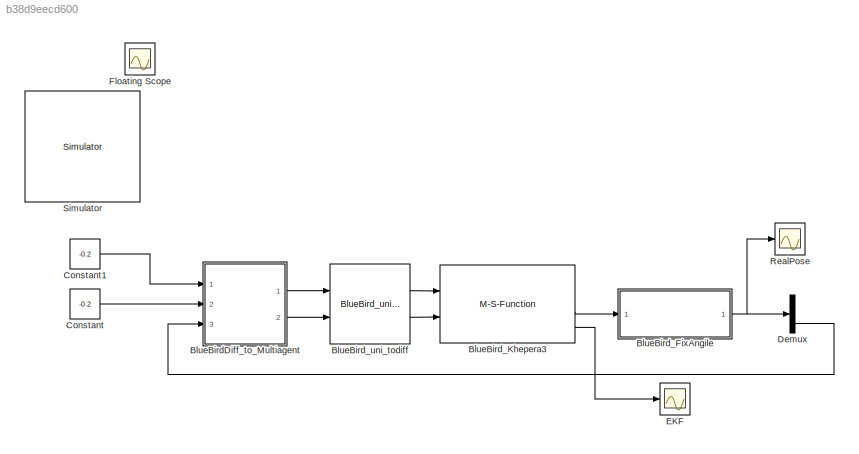
MODEL slx_b38d9eecd600
KIND model
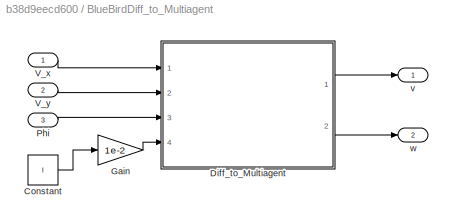
BLOCK [SubSystem] BlueBirdDiff_to_Multiagent
  AncestorBlock = simiam/BlueBird_uni_todiff
  Ports = [3, 2]
  RequestExecContextInheritance = off
BLOCK [Constant] BlueBirdDiff_to_Multiagent/Constant
  Value = l
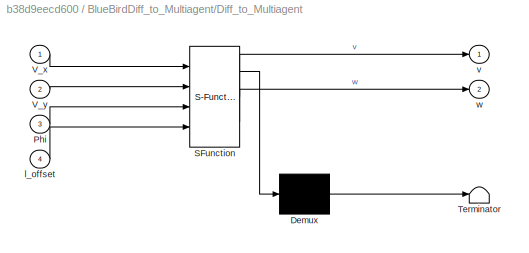
BLOCK [SubSystem] BlueBirdDiff_to_Multiagent/Diff_to_Multiagent
  ErrorFcn = Stateflow.Translate.translate
  PermitHierarchicalResolution = ExplicitOnly
  Ports = [4, 2]
  RequestExecContextInheritance = off
  SFBlockType = MATLAB Function
  TreatAsAtomicUnit = on
BLOCK [Demux] BlueBirdDiff_to_Multiagent/Diff_to_Multiagent/ Demux 
  Outputs = 1
  Ports = [1, 1]
BLOCK [S-Function] BlueBirdDiff_to_Multiagent/Diff_to_Multiagent/ SFunction 
  EnableBusSupport = on
  FunctionName = sf_sfun
  PortCounts = [4 3]
  Ports = [4, 3]
  Tag = Stateflow S-Function BlueBird_RobotLocation 2
BLOCK [Terminator] BlueBirdDiff_to_Multiagent/Diff_to_Multiagent/ Terminator 
BLOCK [Inport] BlueBirdDiff_to_Multiagent/Diff_to_Multiagent/Phi
  IconDisplay = Port number
  Port = 3
BLOCK [Inport] BlueBirdDiff_to_Multiagent/Diff_to_Multiagent/V_x
  IconDisplay = Port number
BLOCK [Inport] BlueBirdDiff_to_Multiagent/Diff_to_Multiagent/V_y
  IconDisplay = Port number
  Port = 2
BLOCK [Inport] BlueBirdDiff_to_Multiagent/Diff_to_Multiagent/l_offset
  IconDisplay = Port number
  Port = 4
BLOCK [Outport] BlueBirdDiff_to_Multiagent/Diff_to_Multiagent/v
  IconDisplay = Port number
BLOCK [Outport] BlueBirdDiff_to_Multiagent/Diff_to_Multiagent/w
  IconDisplay = Port number
  Port = 2
BLOCK [Gain] BlueBirdDiff_to_Multiagent/Gain
  Gain = 1e-2
  OutDataTypeStr = Inherit: Inherit via internal rule
  ParamDataTypeStr = Inherit: Inherit via internal rule
  SaturateOnIntegerOverflow = off
BLOCK [Inport] BlueBirdDiff_to_Multiagent/Phi
  IconDisplay = Port number
  Port = 3
BLOCK [Inport] BlueBirdDiff_to_Multiagent/V_x
  IconDisplay = Port number
BLOCK [Inport] BlueBirdDiff_to_Multiagent/V_y
  IconDisplay = Port number
  Port = 2
BLOCK [Outport] BlueBirdDiff_to_Multiagent/v
  IconDisplay = Port number
BLOCK [Outport] BlueBirdDiff_to_Multiagent/w
  IconDisplay = Port number
  Port = 2
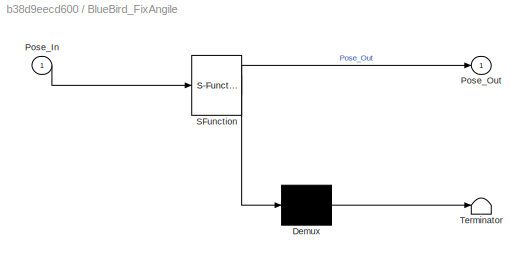
BLOCK [SubSystem] BlueBird_FixAngile
  ErrorFcn = Stateflow.Translate.translate
  PermitHierarchicalResolution = ExplicitOnly
  Ports = [1, 1]
  RequestExecContextInheritance = off
  SFBlockType = MATLAB Function
  TreatAsAtomicUnit = on
BLOCK [Demux] BlueBird_FixAngile/ Demux 
  Outputs = 1
  Ports = [1, 1]
BLOCK [S-Function] BlueBird_FixAngile/ SFunction 
  EnableBusSupport = on
  FunctionName = sf_sfun
  PortCounts = [1 2]
  Ports = [1, 2]
  Tag = Stateflow S-Function BlueBird_RobotLocation 3
BLOCK [Terminator] BlueBird_FixAngile/ Terminator 
BLOCK [Inport] BlueBird_FixAngile/Pose_In
  IconDisplay = Port number
BLOCK [Outport] BlueBird_FixAngile/Pose_Out
  IconDisplay = Port number
BLOCK [M-S-Function] BlueBird_Khepera3
  AncestorBlock = simiam/Khepera III
  FunctionName = msfun_khepera3_WithPosition
  Parameters = x_0,y_0,theta_0,ShowObservation
  Ports = [2, 4]
BLOCK [Reference] BlueBird_uni_todiff  REF=KSim/BlueBird_uni_todiff
  Ports = [2, 2]
  SourceBlock = KSim/BlueBird_uni_todiff
  SourceType = BlueBird_uni_todiff
  b = 0.0885
  r_L = 0.021
  r_R = 0.021
BLOCK [Constant] Constant
  Value = -0.2
BLOCK [Constant] Constant1
  Value = -0.2
BLOCK [Demux] Demux
  DisplayOption = bar
  Outputs = 3
  Ports = [1, 3]
BLOCK [Scope] EKF
  DataFormat = StructureWithTime
  Floating = off
  NumInputPorts = 1
  Ports = [1]
  SampleTime = 0
  SaveName = ScopeData2
  ShowLegends = off
  YMax = 3.5
  YMin = -3.5
BLOCK [Scope] Floating Scope
  DataFormat = StructureWithTime
  Floating = on
  IOType = viewer
  NumInputPorts = 1
  Ports = []
  SampleTime = 0
  ShowLegends = off
BLOCK [Scope] RealPose
  DataFormat = StructureWithTime
  Floating = off
  NumInputPorts = 1
  Ports = [1]
  SampleTime = 0
  SaveName = ScopeData1
  ShowLegends = off
  YMax = 3.5
  YMin = -3.5
BLOCK [Reference] Simulator  REF=KSim/Simulator
  Ports = []
  Priority = 1
  SourceBlock = KSim/Simulator
  SourceType = Simulator
LINE BlueBirdDiff_to_Multiagent:1 -> BlueBird_uni_todiff:1
LINE BlueBirdDiff_to_Multiagent:2 -> BlueBird_uni_todiff:2
NET BlueBird_FixAngile:1 -> Demux:1, RealPose:1
LINE BlueBird_Khepera3:3 -> BlueBird_FixAngile:1
LINE BlueBird_Khepera3:4 -> EKF:1
LINE BlueBird_uni_todiff:1 -> BlueBird_Khepera3:1
LINE BlueBird_uni_todiff:2 -> BlueBird_Khepera3:2
LINE Constant1:1 -> BlueBirdDiff_to_Multiagent:1
LINE Constant:1 -> BlueBirdDiff_to_Multiagent:2
LINE Demux:3 -> BlueBirdDiff_to_Multiagent:3
note: NET lines group one-source signal fan-out (src -> all destinations, sorted); 1:1 wires keep LINE
